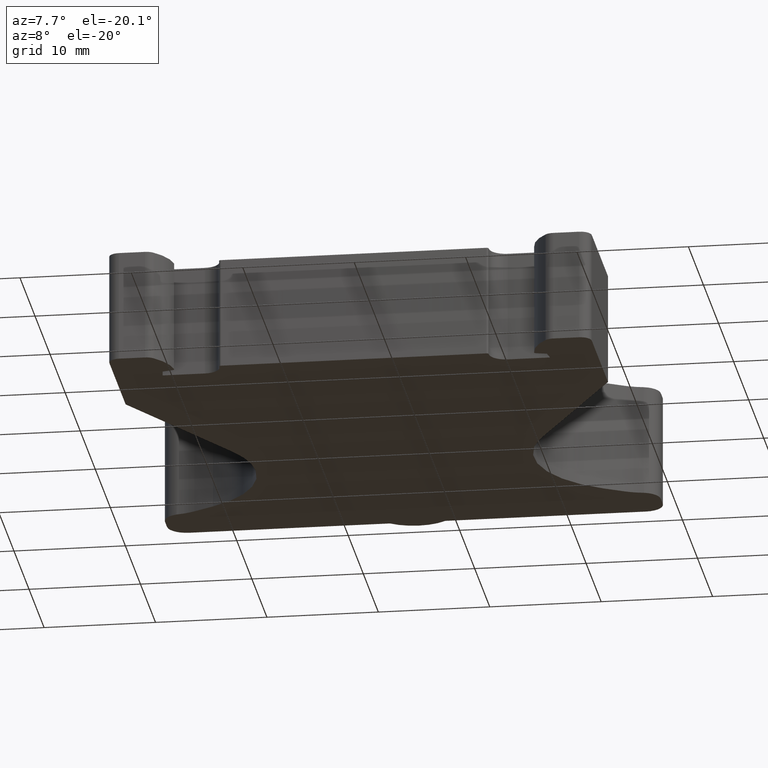
[diagram: clean part render]
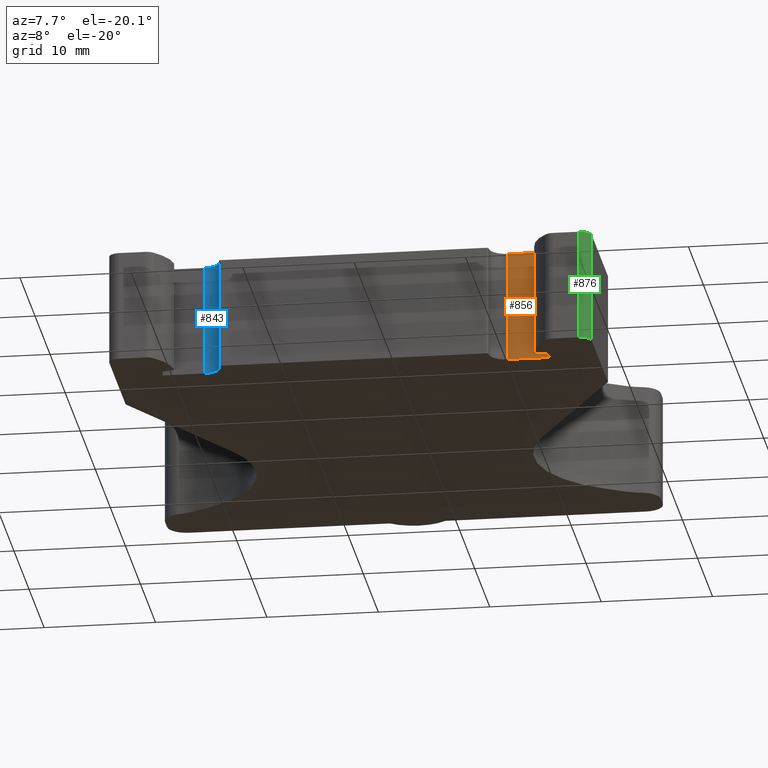
[diagram: same view with three faces highlighted in distinct colors, each labeled with its STEP entity id]
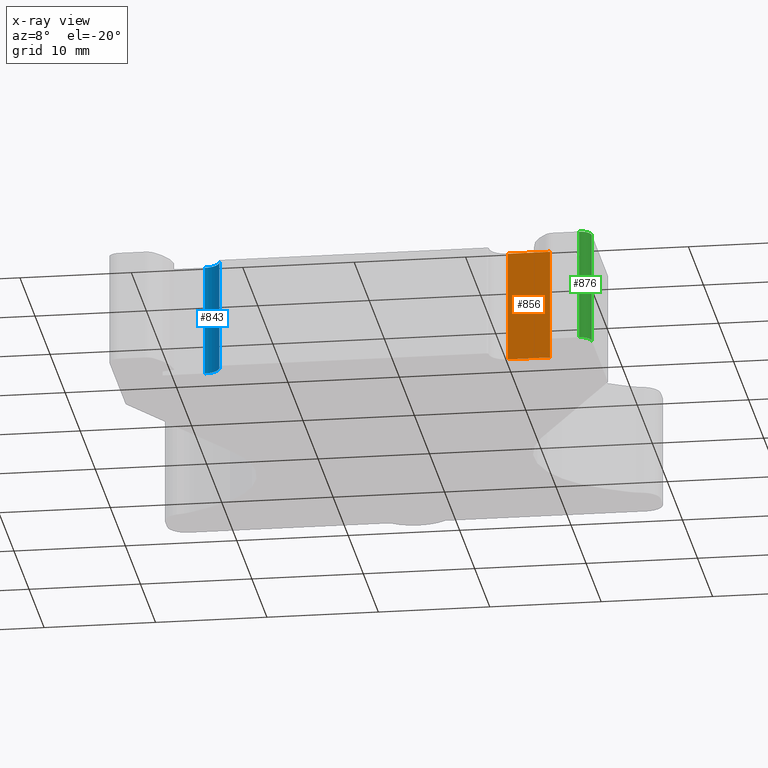
[diagram: x-ray of the same camera — body ghosted, the three highlighted faces saturated]
A machine part, auxiliary view with three faces highlighted in distinct colors.
The next image is the same camera in x-ray (body ghosted, the three faces saturated) — at least one of them is partly hidden behind the body in this view.
Their STEP definitions:

[orange] entity #856 — the highlighted planar face has unit normal (0, 1, 0).
#4 = CARTESIAN_POINT ( 'NONE',  ( 1793.606425861842100, 549.3941131315810900, 10.00000000000000000 ) ) ;
#10 = CARTESIAN_POINT ( 'NONE',  ( 1789.819847589275000, 549.3941690942209600, 0.0000000000000000000 ) ) ;
#35 = CARTESIAN_POINT ( 'NONE',  ( 1793.606425861842600, 549.3941131315810900, 0.0000000000000000000 ) ) ;
#53 = CARTESIAN_POINT ( 'NONE',  ( 1789.819847589275000, 549.3941690942209600, 10.00000000000000000 ) ) ;
#86 = EDGE_LOOP ( 'NONE', ( #264, #305, #309, #273 ) ) ;
#264 = ORIENTED_EDGE ( 'NONE', *, *, #914, .T. ) ;
#273 = ORIENTED_EDGE ( 'NONE', *, *, #881, .F. ) ;
#305 = ORIENTED_EDGE ( 'NONE', *, *, #847, .T. ) ;
#309 = ORIENTED_EDGE ( 'NONE', *, *, #836, .F. ) ;
#452 = VERTEX_POINT ( 'NONE', #10 ) ;
#460 = VERTEX_POINT ( 'NONE', #4 ) ;
#463 = VERTEX_POINT ( 'NONE', #53 ) ;
#487 = VERTEX_POINT ( 'NONE', #35 ) ;
#836 = EDGE_CURVE ( 'NONE', #463, #460, #1641, .T. ) ;
#847 = EDGE_CURVE ( 'NONE', #487, #460, #1717, .T. ) ;
#856 = ADVANCED_FACE ( 'NONE', ( #1733 ), #1744, .F. ) ;
#881 = EDGE_CURVE ( 'NONE', #452, #463, #1353, .T. ) ;
#914 = EDGE_CURVE ( 'NONE', #452, #487, #1406, .T. ) ;
#1028 = VECTOR ( 'NONE', #1332, 1000.000000000000000 ) ;
#1112 = VECTOR ( 'NONE', #1413, 999.9999999999998900 ) ;
#1226 = VECTOR ( 'NONE', #1657, 999.9999999999998900 ) ;
#1227 = VECTOR ( 'NONE', #1699, 1000.000000000000000 ) ;
#1231 = AXIS2_PLACEMENT_3D ( 'NONE', #1740, #1741, #1750 ) ;
#1332 = DIRECTION ( 'NONE',  ( 0.0000000000000000000, 0.0000000000000000000, 1.000000000000000000 ) ) ;
#1340 = CARTESIAN_POINT ( 'NONE',  ( 1789.819847589275000, 549.3941690942209600, -8.809856332130250300 ) ) ;
#1353 = LINE ( 'NONE', #1340, #1028 ) ;
#1406 = LINE ( 'NONE', #1409, #1112 ) ;
#1409 = CARTESIAN_POINT ( 'NONE',  ( 1790.270784320760200, 549.3941624297320900, 0.0000000000000000000 ) ) ;
#1413 = DIRECTION ( 'NONE',  ( 0.9999999998907875800, -1.477921145617764800E-005, 0.0000000000000000000 ) ) ;
#1641 = LINE ( 'NONE', #1670, #1226 ) ;
#1657 = DIRECTION ( 'NONE',  ( 0.9999999998907875800, -1.477921145617764800E-005, 0.0000000000000000000 ) ) ;
#1670 = CARTESIAN_POINT ( 'NONE',  ( 1790.270784320760200, 549.3941624297320900, 10.00000000000000000 ) ) ;
#1699 = DIRECTION ( 'NONE',  ( 0.0000000000000000000, 0.0000000000000000000, 1.000000000000000000 ) ) ;
#1703 = CARTESIAN_POINT ( 'NONE',  ( 1793.606425861842600, 549.3941131315810900, -64.28605612317396400 ) ) ;
#1717 = LINE ( 'NONE', #1703, #1227 ) ;
#1733 = FACE_OUTER_BOUND ( 'NONE', #86, .T. ) ;
#1740 = CARTESIAN_POINT ( 'NONE',  ( 1790.270784320760200, 549.3941624297320900, 10.00000000000000000 ) ) ;
#1741 = DIRECTION ( 'NONE',  ( 1.477921145617765200E-005, 0.9999999998907874700, 0.0000000000000000000 ) ) ;
#1744 = PLANE ( 'NONE',  #1231 ) ;
#1750 = DIRECTION ( 'NONE',  ( -0.9999999998907874700, 1.477921145617765200E-005, 0.0000000000000000000 ) ) ;

[blue] entity #843 — the highlighted cylindrical surface (edge-blend (fillet) strip) has radius 1.5 mm, axis along (0, 0, 1).
#8 = CARTESIAN_POINT ( 'NONE',  ( 1762.619791743365100, 549.3941690927810000, 10.00000000000000000 ) ) ;
#34 = CARTESIAN_POINT ( 'NONE',  ( 1762.619791743365100, 549.3941690927810000, 0.0000000000000000000 ) ) ;
#36 = CARTESIAN_POINT ( 'NONE',  ( 1764.119813912180000, 547.8941690929449400, 0.0000000000000000000 ) ) ;
#46 = CARTESIAN_POINT ( 'NONE',  ( 1764.119813912180000, 547.8941690929449400, 10.00000000000000000 ) ) ;
#72 = EDGE_LOOP ( 'NONE', ( #330, #359, #361, #322 ) ) ;
#322 = ORIENTED_EDGE ( 'NONE', *, *, #886, .F. ) ;
#330 = ORIENTED_EDGE ( 'NONE', *, *, #991, .F. ) ;
#359 = ORIENTED_EDGE ( 'NONE', *, *, #986, .T. ) ;
#361 = ORIENTED_EDGE ( 'NONE', *, *, #868, .F. ) ;
#458 = VERTEX_POINT ( 'NONE', #8 ) ;
#476 = VERTEX_POINT ( 'NONE', #34 ) ;
#490 = VERTEX_POINT ( 'NONE', #36 ) ;
#501 = VERTEX_POINT ( 'NONE', #46 ) ;
#695 = CARTESIAN_POINT ( 'NONE',  ( 1764.119813912180000, 547.8941690929449400, -8.809856332130250300 ) ) ;
#705 = CARTESIAN_POINT ( 'NONE',  ( 1762.619813912180000, 547.8941690929449400, 0.0000000000000000000 ) ) ;
#706 = DIRECTION ( 'NONE',  ( 0.0000000000000000000, 0.0000000000000000000, 1.000000000000000000 ) ) ;
#716 = DIRECTION ( 'NONE',  ( 1.000000000000000000, 0.0000000000000000000, 0.0000000000000000000 ) ) ;
#732 = LINE ( 'NONE', #695, #1169 ) ;
#736 = DIRECTION ( 'NONE',  ( 0.0000000000000000000, 0.0000000000000000000, 1.000000000000000000 ) ) ;
#843 = ADVANCED_FACE ( 'NONE', ( #1638 ), #1645, .F. ) ;
#868 = EDGE_CURVE ( 'NONE', #458, #501, #1050, .T. ) ;
#886 = EDGE_CURVE ( 'NONE', #476, #458, #1346, .T. ) ;
#986 = EDGE_CURVE ( 'NONE', #490, #501, #732, .T. ) ;
#991 = EDGE_CURVE ( 'NONE', #490, #476, #1176, .T. ) ;
#1046 = VECTOR ( 'NONE', #1322, 1000.000000000000000 ) ;
#1047 = AXIS2_PLACEMENT_3D ( 'NONE', #1271, #1298, #1300 ) ;
#1050 = CIRCLE ( 'NONE', #1047, 1.499999999999834800 ) ;
#1169 = VECTOR ( 'NONE', #736, 1000.000000000000000 ) ;
#1176 = CIRCLE ( 'NONE', #1188, 1.499999999999834800 ) ;
#1188 = AXIS2_PLACEMENT_3D ( 'NONE', #705, #706, #716 ) ;
#1230 = AXIS2_PLACEMENT_3D ( 'NONE', #1705, #1711, #1689 ) ;
#1271 = CARTESIAN_POINT ( 'NONE',  ( 1762.619813912180000, 547.8941690929449400, 10.00000000000000000 ) ) ;
#1298 = DIRECTION ( 'NONE',  ( 0.0000000000000000000, 0.0000000000000000000, -1.000000000000000000 ) ) ;
#1300 = DIRECTION ( 'NONE',  ( 1.000000000000000000, 0.0000000000000000000, 0.0000000000000000000 ) ) ;
#1322 = DIRECTION ( 'NONE',  ( 0.0000000000000000000, 0.0000000000000000000, 1.000000000000000000 ) ) ;
#1346 = LINE ( 'NONE', #1348, #1046 ) ;
#1348 = CARTESIAN_POINT ( 'NONE',  ( 1762.619791743365100, 549.3941690927810000, -8.809856332130250300 ) ) ;
#1638 = FACE_OUTER_BOUND ( 'NONE', #72, .T. ) ;
#1645 = CYLINDRICAL_SURFACE ( 'NONE', #1230, 1.499999999999834800 ) ;
#1689 = DIRECTION ( 'NONE',  ( 1.000000000000000000, 0.0000000000000000000, 0.0000000000000000000 ) ) ;
#1705 = CARTESIAN_POINT ( 'NONE',  ( 1762.619813912180000, 547.8941690929449400, -8.809856332130250300 ) ) ;
#1711 = DIRECTION ( 'NONE',  ( 0.0000000000000000000, 0.0000000000000000000, 1.000000000000000000 ) ) ;

[green] entity #876 — the highlighted cylindrical surface (edge-blend (fillet) strip) has radius 1 mm, axis along (0, 0, -1).
#13 = CARTESIAN_POINT ( 'NONE',  ( 1796.869850691134800, 544.5720436728429400, 10.00000000000000000 ) ) ;
#93 = EDGE_LOOP ( 'NONE', ( #329, #436, #357, #435 ) ) ;
#329 = ORIENTED_EDGE ( 'NONE', *, *, #906, .T. ) ;
#357 = ORIENTED_EDGE ( 'NONE', *, *, #861, .F. ) ;
#397 = VERTEX_POINT ( 'NONE', #541 ) ;
#408 = VERTEX_POINT ( 'NONE', #531 ) ;
#435 = ORIENTED_EDGE ( 'NONE', *, *, #993, .T. ) ;
#436 = ORIENTED_EDGE ( 'NONE', *, *, #978, .F. ) ;
#451 = VERTEX_POINT ( 'NONE', #524 ) ;
#470 = VERTEX_POINT ( 'NONE', #13 ) ;
#524 = CARTESIAN_POINT ( 'NONE',  ( 1797.869850691135100, 545.5720436728429400, 0.0000000000000000000 ) ) ;
#531 = CARTESIAN_POINT ( 'NONE',  ( 1797.869850691135100, 545.5720436728429400, 10.00000000000000000 ) ) ;
#541 = CARTESIAN_POINT ( 'NONE',  ( 1796.869850691134800, 544.5720436728429400, 0.0000000000000000000 ) ) ;
#647 = DIRECTION ( 'NONE',  ( 0.0000000000000000000, 0.0000000000000000000, -1.000000000000000000 ) ) ;
#667 = LINE ( 'NONE', #683, #1161 ) ;
#683 = CARTESIAN_POINT ( 'NONE',  ( 1797.869850691135100, 545.5720436728429400, 10.00000000000000000 ) ) ;
#693 = LINE ( 'NONE', #719, #1133 ) ;
#719 = CARTESIAN_POINT ( 'NONE',  ( 1796.869850691134800, 544.5720436728429400, 10.00000000000000000 ) ) ;
#726 = DIRECTION ( 'NONE',  ( 0.0000000000000000000, 0.0000000000000000000, -1.000000000000000000 ) ) ;
#861 = EDGE_CURVE ( 'NONE', #470, #408, #1008, .T. ) ;
#876 = ADVANCED_FACE ( 'NONE', ( #1326 ), #1323, .T. ) ;
#906 = EDGE_CURVE ( 'NONE', #397, #451, #1026, .T. ) ;
#978 = EDGE_CURVE ( 'NONE', #408, #451, #667, .T. ) ;
#993 = EDGE_CURVE ( 'NONE', #470, #397, #693, .T. ) ;
#1008 = CIRCLE ( 'NONE', #1020, 0.9999999999998898700 ) ;
#1020 = AXIS2_PLACEMENT_3D ( 'NONE', #1295, #1290, #1291 ) ;
#1026 = CIRCLE ( 'NONE', #1052, 0.9999999999998898700 ) ;
#1052 = AXIS2_PLACEMENT_3D ( 'NONE', #1424, #1443, #1441 ) ;
#1065 = AXIS2_PLACEMENT_3D ( 'NONE', #1328, #1342, #1338 ) ;
#1133 = VECTOR ( 'NONE', #726, 1000.000000000000000 ) ;
#1161 = VECTOR ( 'NONE', #647, 1000.000000000000000 ) ;
#1290 = DIRECTION ( 'NONE',  ( 0.0000000000000000000, 0.0000000000000000000, 1.000000000000000000 ) ) ;
#1291 = DIRECTION ( 'NONE',  ( 1.000000000000000000, 0.0000000000000000000, 0.0000000000000000000 ) ) ;
#1295 = CARTESIAN_POINT ( 'NONE',  ( 1796.869850691134800, 545.5720436728429400, 10.00000000000000000 ) ) ;
#1323 = CYLINDRICAL_SURFACE ( 'NONE', #1065, 0.9999999999998898700 ) ;
#1326 = FACE_OUTER_BOUND ( 'NONE', #93, .T. ) ;
#1328 = CARTESIAN_POINT ( 'NONE',  ( 1796.869850691134800, 545.5720436728429400, 10.00000000000000000 ) ) ;
#1338 = DIRECTION ( 'NONE',  ( -1.000000000000000000, 0.0000000000000000000, 0.0000000000000000000 ) ) ;
#1342 = DIRECTION ( 'NONE',  ( 0.0000000000000000000, 0.0000000000000000000, -1.000000000000000000 ) ) ;
#1424 = CARTESIAN_POINT ( 'NONE',  ( 1796.869850691134800, 545.5720436728429400, 0.0000000000000000000 ) ) ;
#1441 = DIRECTION ( 'NONE',  ( 1.000000000000000000, 0.0000000000000000000, 0.0000000000000000000 ) ) ;
#1443 = DIRECTION ( 'NONE',  ( 0.0000000000000000000, 0.0000000000000000000, 1.000000000000000000 ) ) ;